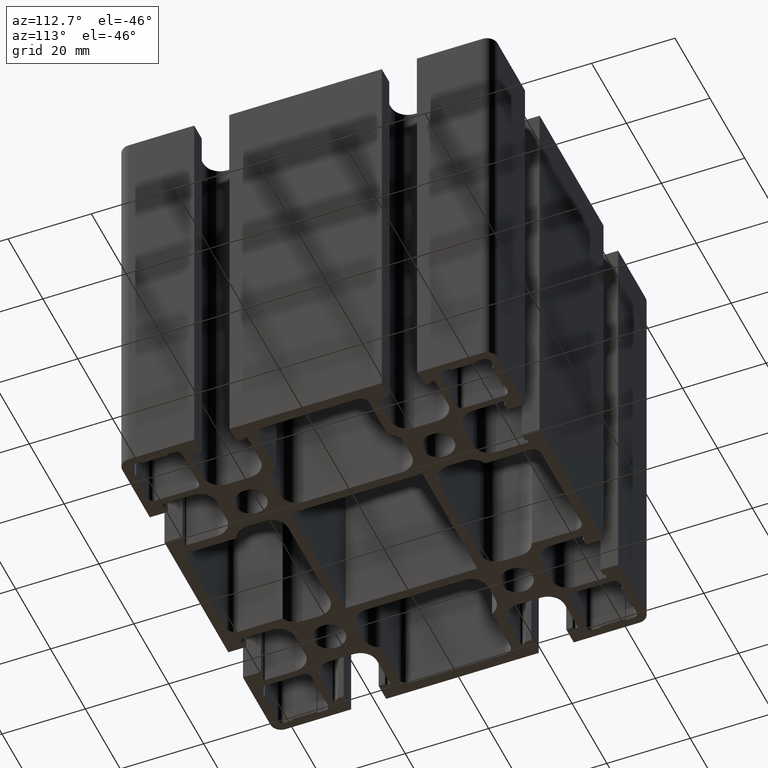
[diagram: clean part render]
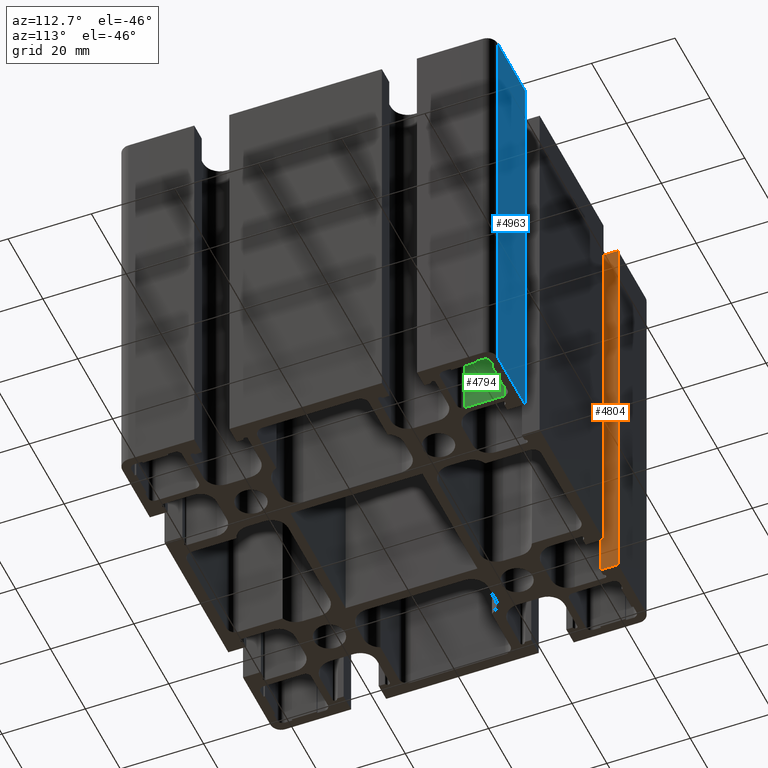
[diagram: same view with three faces highlighted in distinct colors, each labeled with its STEP entity id]
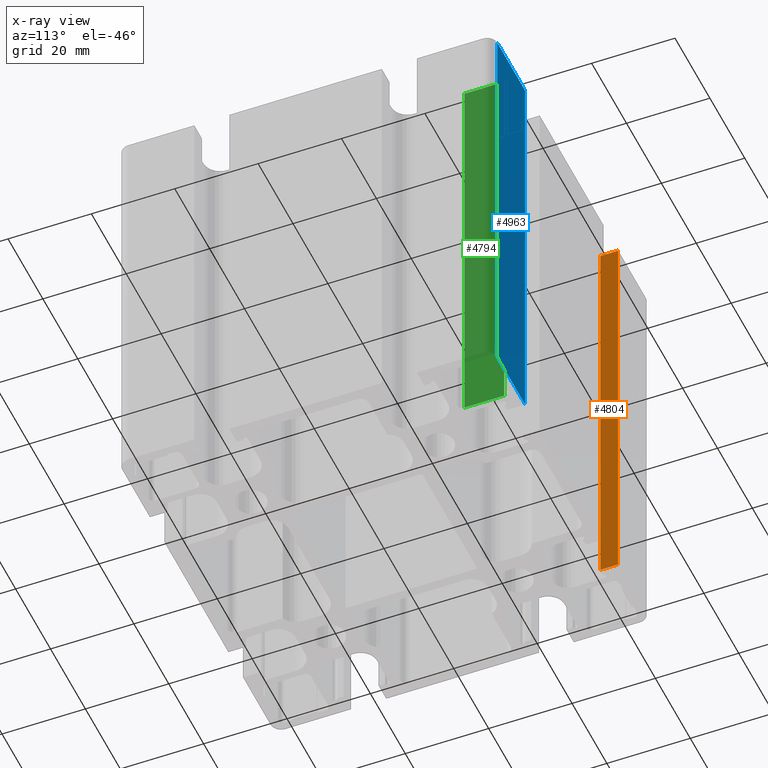
[diagram: x-ray of the same camera — body ghosted, the three highlighted faces saturated]
A machine part, auxiliary view with three faces highlighted in distinct colors.
The next image is the same camera in x-ray (body ghosted, the three faces saturated) — at least one of them is partly hidden behind the body in this view.
Their STEP definitions:

[orange] entity #4804 — the highlighted planar face has unit normal (-1, 0, 0).
#92=PLANE('',#5107);
#269=FACE_OUTER_BOUND('',#516,.T.);
#516=EDGE_LOOP('',(#3479,#3480,#3481,#3482));
#879=LINE('',#7270,#1412);
#882=LINE('',#7276,#1415);
#883=LINE('',#7278,#1416);
#884=LINE('',#7279,#1417);
#1412=VECTOR('',#5842,100.);
#1415=VECTOR('',#5847,4.29999999999974);
#1416=VECTOR('',#5848,100.);
#1417=VECTOR('',#5849,4.29999999999974);
#2120=VERTEX_POINT('',#7266);
#2122=VERTEX_POINT('',#7269);
#2124=VERTEX_POINT('',#7275);
#2125=VERTEX_POINT('',#7277);
#2679=EDGE_CURVE('',#2122,#2120,#879,.T.);
#2682=EDGE_CURVE('',#2124,#2120,#882,.T.);
#2683=EDGE_CURVE('',#2125,#2124,#883,.T.);
#2684=EDGE_CURVE('',#2122,#2125,#884,.T.);
#3479=ORIENTED_EDGE('',*,*,#2682,.F.);
#3480=ORIENTED_EDGE('',*,*,#2683,.F.);
#3481=ORIENTED_EDGE('',*,*,#2684,.F.);
#3482=ORIENTED_EDGE('',*,*,#2679,.T.);
#4804=ADVANCED_FACE('',(#269),#92,.F.);
#5107=AXIS2_PLACEMENT_3D('',#7274,#5845,#5846);
#5842=DIRECTION('',(0.,0.,1.));
#5845=DIRECTION('center_axis',(-0.999999999973962,7.21640276424341E-6,0.));
#5846=DIRECTION('ref_axis',(-7.21640276424295E-6,-0.999999999973962,0.));
#5847=DIRECTION('',(7.21640276424341E-6,0.999999999973962,0.));
#5848=DIRECTION('',(0.,0.,1.));
#5849=DIRECTION('',(-7.21640276424341E-6,-0.999999999973962,0.));
#7266=CARTESIAN_POINT('',(-26.6998982775649,44.9994413419217,100.));
#7269=CARTESIAN_POINT('',(-26.6998982775649,44.9994413419217,0.));
#7270=CARTESIAN_POINT('',(-26.6998982775649,44.9994413419217,0.));
#7274=CARTESIAN_POINT('Origin',(-26.6998982775649,44.9994413419217,0.));
#7275=CARTESIAN_POINT('',(-26.6999293080968,40.6994413420339,100.));
#7276=CARTESIAN_POINT('',(-26.7000606439162,22.4998170107424,100.));
#7277=CARTESIAN_POINT('',(-26.6999293080968,40.6994413420339,0.));
#7278=CARTESIAN_POINT('',(-26.6999293080968,40.6994413420339,0.));
#7279=CARTESIAN_POINT('',(-26.7000606439162,22.4998170107424,0.));

[blue] entity #4963 — the highlighted planar face has unit normal (0, 1, 0).
#187=PLANE('',#5394);
#428=FACE_OUTER_BOUND('',#677,.T.);
#677=EDGE_LOOP('',(#4111,#4112,#4113,#4114));
#1109=LINE('',#7929,#1642);
#1236=LINE('',#8249,#1769);
#1237=LINE('',#8251,#1770);
#1238=LINE('',#8252,#1771);
#1642=VECTOR('',#6476,100.);
#1769=VECTOR('',#6775,15.7996226990071);
#1770=VECTOR('',#6776,100.);
#1771=VECTOR('',#6777,15.7996226990071);
#2348=VERTEX_POINT('',#7926);
#2349=VERTEX_POINT('',#7928);
#2456=VERTEX_POINT('',#8248);
#2457=VERTEX_POINT('',#8250);
#3005=EDGE_CURVE('',#2349,#2348,#1109,.T.);
#3164=EDGE_CURVE('',#2348,#2456,#1236,.T.);
#3165=EDGE_CURVE('',#2457,#2456,#1237,.T.);
#3166=EDGE_CURVE('',#2349,#2457,#1238,.T.);
#4111=ORIENTED_EDGE('',*,*,#3005,.T.);
#4112=ORIENTED_EDGE('',*,*,#3164,.T.);
#4113=ORIENTED_EDGE('',*,*,#3165,.F.);
#4114=ORIENTED_EDGE('',*,*,#3166,.F.);
#4963=ADVANCED_FACE('',(#428),#187,.T.);
#5394=AXIS2_PLACEMENT_3D('',#8247,#6773,#6774);
#6476=DIRECTION('',(0.,0.,1.));
#6773=DIRECTION('center_axis',(0.,1.,0.));
#6774=DIRECTION('ref_axis',(-1.,0.,0.));
#6775=DIRECTION('',(1.,0.,0.));
#6776=DIRECTION('',(0.,0.,1.));
#6777=DIRECTION('',(1.,0.,0.));
#7926=CARTESIAN_POINT('',(26.7003773009929,45.,100.));
#7928=CARTESIAN_POINT('',(26.7003773009929,45.,0.));
#7929=CARTESIAN_POINT('',(26.7003773009929,45.,0.));
#8247=CARTESIAN_POINT('Origin',(42.5,45.,0.));
#8248=CARTESIAN_POINT('',(42.5,45.,100.));
#8249=CARTESIAN_POINT('',(21.25,45.,100.));
#8250=CARTESIAN_POINT('',(42.5,45.,0.));
#8251=CARTESIAN_POINT('',(42.5,45.,0.));
#8252=CARTESIAN_POINT('',(21.25,45.,0.));

[green] entity #4794 — the highlighted planar face has unit normal (-1, 0, 0).
#85=PLANE('',#5091);
#259=FACE_OUTER_BOUND('',#504,.T.);
#504=EDGE_LOOP('',(#3443,#3444,#3445,#3446));
#859=LINE('',#7215,#1392);
#860=LINE('',#7218,#1393);
#861=LINE('',#7220,#1394);
#862=LINE('',#7221,#1395);
#1392=VECTOR('',#5790,100.);
#1393=VECTOR('',#5793,9.55000000000018);
#1394=VECTOR('',#5794,9.55000000000018);
#1395=VECTOR('',#5795,100.);
#2102=VERTEX_POINT('',#7211);
#2103=VERTEX_POINT('',#7213);
#2104=VERTEX_POINT('',#7217);
#2105=VERTEX_POINT('',#7219);
#2653=EDGE_CURVE('',#2103,#2102,#859,.T.);
#2654=EDGE_CURVE('',#2102,#2104,#860,.T.);
#2655=EDGE_CURVE('',#2105,#2103,#861,.T.);
#2656=EDGE_CURVE('',#2105,#2104,#862,.T.);
#3443=ORIENTED_EDGE('',*,*,#2654,.F.);
#3444=ORIENTED_EDGE('',*,*,#2653,.F.);
#3445=ORIENTED_EDGE('',*,*,#2655,.F.);
#3446=ORIENTED_EDGE('',*,*,#2656,.T.);
#4794=ADVANCED_FACE('',(#259),#85,.F.);
#5091=AXIS2_PLACEMENT_3D('',#7216,#5791,#5792);
#5790=DIRECTION('',(0.,0.,1.));
#5791=DIRECTION('center_axis',(-1.,7.53324104667108E-14,0.));
#5792=DIRECTION('ref_axis',(-7.53175299905706E-14,-1.,0.));
#5793=DIRECTION('',(7.53324104667108E-14,1.,0.));
#5794=DIRECTION('',(-7.53324104667108E-14,-1.,0.));
#5795=DIRECTION('',(0.,0.,1.));
#7211=CARTESIAN_POINT('',(30.9502666666665,32.25,100.));
#7213=CARTESIAN_POINT('',(30.9502666666665,32.25,0.));
#7215=CARTESIAN_POINT('',(30.9502666666665,32.25,0.));
#7216=CARTESIAN_POINT('Origin',(30.9502666666672,41.8000000000002,0.));
#7217=CARTESIAN_POINT('',(30.9502666666672,41.8000000000002,100.));
#7218=CARTESIAN_POINT('',(30.9502666666656,20.8999999999989,100.));
#7219=CARTESIAN_POINT('',(30.9502666666672,41.8000000000002,0.));
#7220=CARTESIAN_POINT('',(30.9502666666656,20.8999999999989,0.));
#7221=CARTESIAN_POINT('',(30.9502666666672,41.8000000000002,0.));